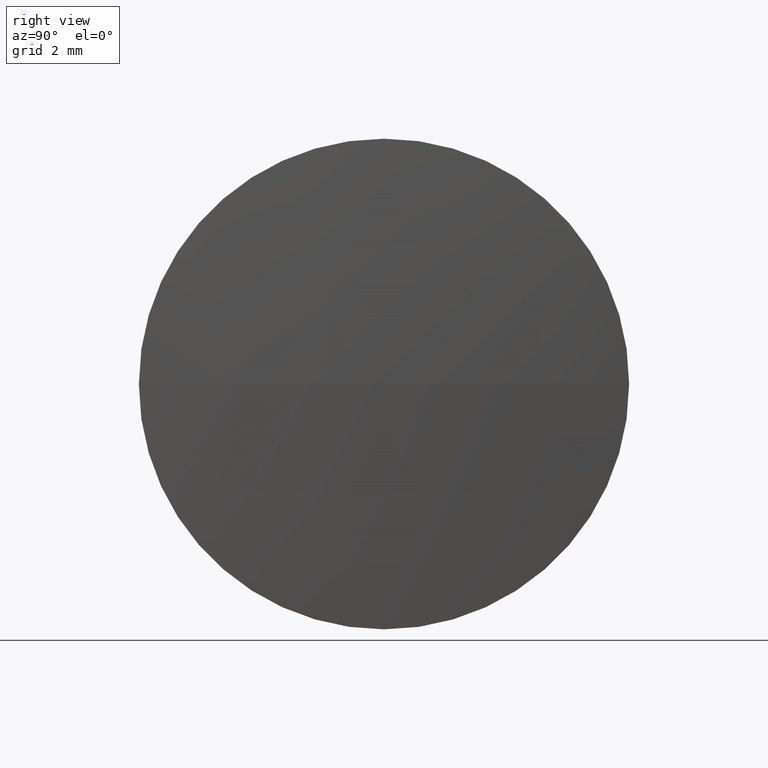
[diagram: clean part render]
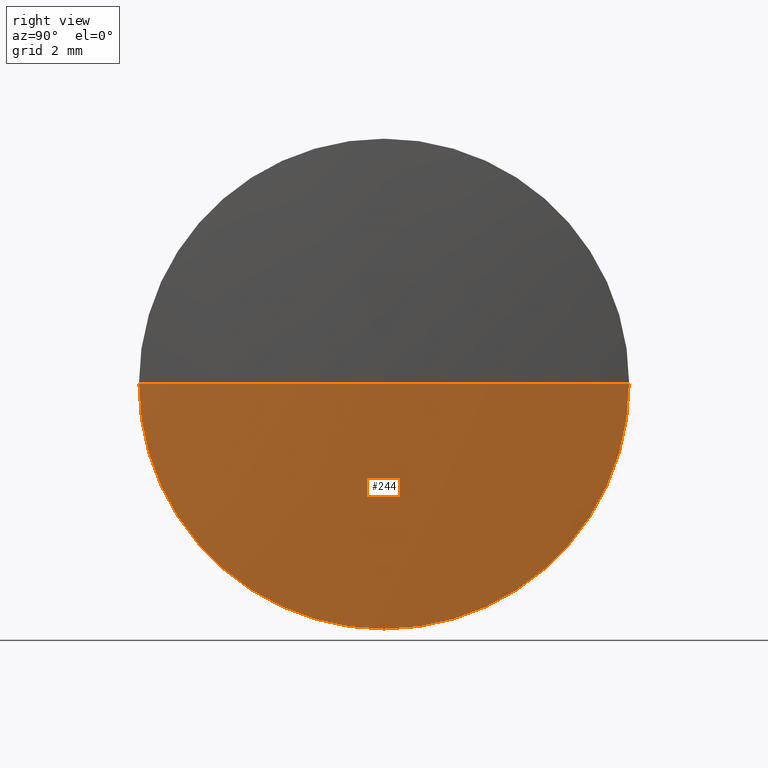
[diagram: same view with one face highlighted and labeled with its STEP entity id]
A machine part, right view. The second image highlights one B-rep face of the part: STEP entity #244.
In plain terms, the highlighted spherical surface has radius 82.32 mm.
Its self-contained STEP definition (entity closure, byte-faithful):
#4 = AXIS2_PLACEMENT_3D ( 'NONE', #238, #42, #39 ) ;
#18 = DIRECTION ( 'NONE',  ( 0.000000000000000000, 0.000000000000000000, 1.000000000000000000 ) ) ;
#32 = CIRCLE ( 'NONE', #51, 6.349999999999999645 ) ;
#35 = CARTESIAN_POINT ( 'NONE',  ( -74.26425793104048978, 9.142250141345662939, -7.776507174585752314E-16 ) ) ;
#39 = DIRECTION ( 'NONE',  ( 0.000000000000000000, 1.000000000000000000, 0.000000000000000000 ) ) ;
#42 = DIRECTION ( 'NONE',  ( -0.000000000000000000, 0.000000000000000000, -1.000000000000000000 ) ) ;
#44 = CIRCLE ( 'NONE', #436, 82.31999999999999318 ) ;
#51 = AXIS2_PLACEMENT_3D ( 'NONE', #328, #397, #18 ) ;
#62 = CARTESIAN_POINT ( 'NONE',  ( -74.26425793104048978, 21.84225014134576170, 0.000000000000000000 ) ) ;
#71 = DIRECTION ( 'NONE',  ( -1.000000000000000000, -0.000000000000000000, -0.000000000000000000 ) ) ;
#92 = ORIENTED_EDGE ( 'NONE', *, *, #179, .F. ) ;
#103 = CARTESIAN_POINT ( 'NONE',  ( -74.26425793104050399, 15.49225014134571232, 0.000000000000000000 ) ) ;
#119 = EDGE_CURVE ( 'NONE', #169, #289, #379, .T. ) ;
#124 = VERTEX_POINT ( 'NONE', #62 ) ;
#128 = AXIS2_PLACEMENT_3D ( 'NONE', #103, #71, #176 ) ;
#130 = DIRECTION ( 'NONE',  ( 0.000000000000000000, 1.000000000000000000, 1.224646799147353207E-16 ) ) ;
#145 = SPHERICAL_SURFACE ( 'NONE', #4, 82.31999999999999318 ) ;
#169 = VERTEX_POINT ( 'NONE', #342 ) ;
#176 = DIRECTION ( 'NONE',  ( 0.000000000000000000, 0.000000000000000000, 1.000000000000000000 ) ) ;
#179 = EDGE_CURVE ( 'NONE', #169, #124, #44, .T. ) ;
#190 = CIRCLE ( 'NONE', #128, 6.349999999999999645 ) ;
#209 = VERTEX_POINT ( 'NONE', #414 ) ;
#234 = CARTESIAN_POINT ( 'NONE',  ( -156.3389793743691882, 15.49225014134571232, 0.000000000000000000 ) ) ;
#238 = CARTESIAN_POINT ( 'NONE',  ( -156.3389793743691882, 15.49225014134571232, 0.000000000000000000 ) ) ;
#244 = ADVANCED_FACE ( 'NONE', ( #352 ), #145, .T. ) ;
#252 = EDGE_CURVE ( 'NONE', #209, #289, #190, .T. ) ;
#270 = ORIENTED_EDGE ( 'NONE', *, *, #252, .F. ) ;
#279 = ORIENTED_EDGE ( 'NONE', *, *, #372, .F. ) ;
#289 = VERTEX_POINT ( 'NONE', #35 ) ;
#305 = DIRECTION ( 'NONE',  ( 0.000000000000000000, 1.224646799147353207E-16, -1.000000000000000000 ) ) ;
#321 = DIRECTION ( 'NONE',  ( 1.000000000000000000, 0.000000000000000000, 0.000000000000000000 ) ) ;
#328 = CARTESIAN_POINT ( 'NONE',  ( -74.26425793104050399, 15.49225014134571232, 0.000000000000000000 ) ) ;
#342 = CARTESIAN_POINT ( 'NONE',  ( -74.01897937436919506, 15.49225014134571765, 0.000000000000000000 ) ) ;
#352 = FACE_OUTER_BOUND ( 'NONE', #389, .T. ) ;
#363 = ORIENTED_EDGE ( 'NONE', *, *, #119, .T. ) ;
#372 = EDGE_CURVE ( 'NONE', #124, #209, #32, .T. ) ;
#379 = CIRCLE ( 'NONE', #417, 82.31999999999999318 ) ;
#389 = EDGE_LOOP ( 'NONE', ( #92, #363, #270, #279 ) ) ;
#397 = DIRECTION ( 'NONE',  ( -1.000000000000000000, -0.000000000000000000, -0.000000000000000000 ) ) ;
#414 = CARTESIAN_POINT ( 'NONE',  ( -74.26425793104050399, 15.49225014134571232, -6.349999999999999645 ) ) ;
#417 = AXIS2_PLACEMENT_3D ( 'NONE', #234, #305, #130 ) ;
#420 = DIRECTION ( 'NONE',  ( -0.000000000000000000, 0.000000000000000000, 1.000000000000000000 ) ) ;
#436 = AXIS2_PLACEMENT_3D ( 'NONE', #444, #420, #321 ) ;
#444 = CARTESIAN_POINT ( 'NONE',  ( -156.3389793743691882, 15.49225014134571232, 0.000000000000000000 ) ) ;